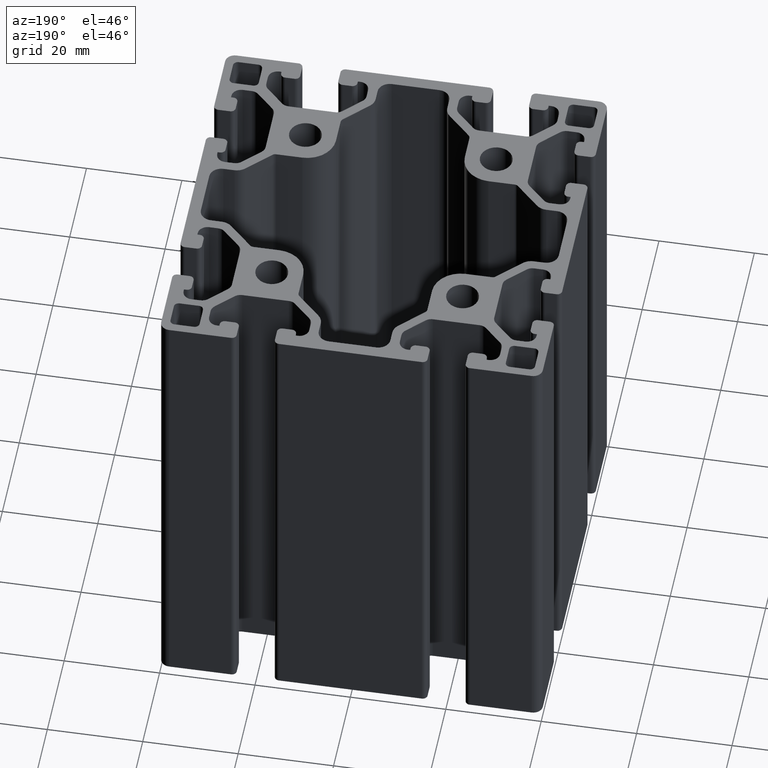
[diagram: clean part render]
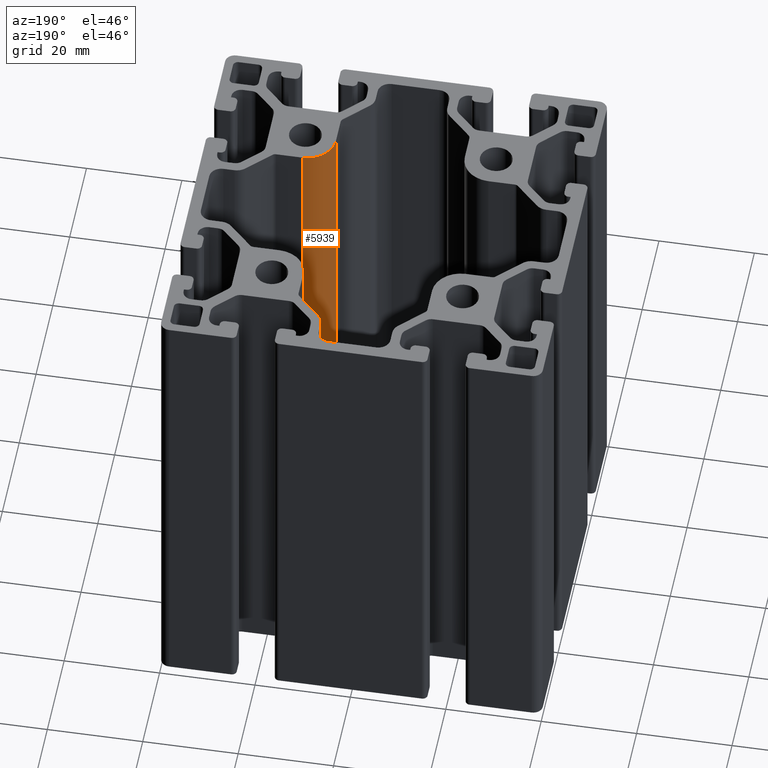
[diagram: same view with one face highlighted and labeled with its STEP entity id]
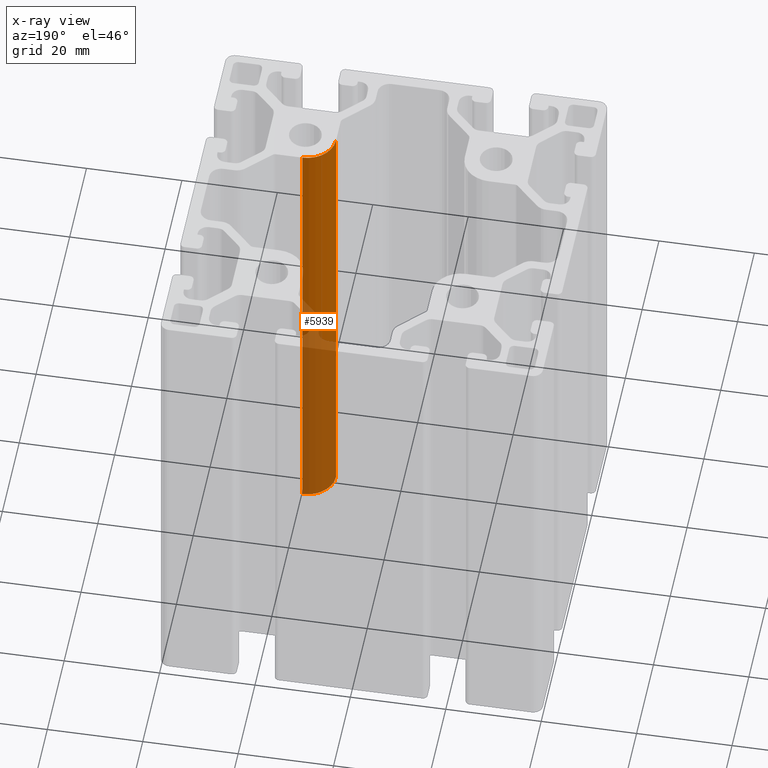
[diagram: x-ray of the same camera — body ghosted, the highlighted face saturated]
A machine part, auxiliary view. The second image highlights one B-rep face of the part: STEP entity #5939.
The next image is the same camera in x-ray: the body ghosted, the highlighted face saturated — about 50% of this face is hidden behind the body in this view.
In plain terms, the highlighted cylindrical surface (edge-blend (fillet) strip) has radius 6 mm, axis along (0, 0, 1).
Its self-contained STEP definition (entity closure, byte-faithful):
#229=FACE_OUTER_BOUND('',#539,.T.);
#539=EDGE_LOOP('',(#4041,#4042,#4043,#4044));
#901=LINE('',#8848,#1525);
#902=LINE('',#8854,#1526);
#1525=VECTOR('',#7009,100.);
#1526=VECTOR('',#7016,100.);
#2119=CIRCLE('',#6282,6.);
#2120=CIRCLE('',#6283,6.);
#2445=VERTEX_POINT('',#8844);
#2446=VERTEX_POINT('',#8846);
#2447=VERTEX_POINT('',#8850);
#2448=VERTEX_POINT('',#8852);
#3091=EDGE_CURVE('',#2446,#2445,#901,.T.);
#3092=EDGE_CURVE('',#2445,#2447,#2119,.T.);
#3093=EDGE_CURVE('',#2448,#2446,#2120,.T.);
#3094=EDGE_CURVE('',#2448,#2447,#902,.T.);
#4041=ORIENTED_EDGE('',*,*,#3092,.F.);
#4042=ORIENTED_EDGE('',*,*,#3091,.F.);
#4043=ORIENTED_EDGE('',*,*,#3093,.F.);
#4044=ORIENTED_EDGE('',*,*,#3094,.T.);
#5776=CYLINDRICAL_SURFACE('',#6281,6.);
#5939=ADVANCED_FACE('',(#229),#5776,.T.);
#6281=AXIS2_PLACEMENT_3D('',#8849,#7010,#7011);
#6282=AXIS2_PLACEMENT_3D('',#8851,#7012,#7013);
#6283=AXIS2_PLACEMENT_3D('',#8853,#7014,#7015);
#7009=DIRECTION('',(0.,0.,1.));
#7010=DIRECTION('center_axis',(0.,0.,1.));
#7011=DIRECTION('ref_axis',(7.40148683083438E-16,1.,0.));
#7012=DIRECTION('center_axis',(0.,0.,1.));
#7013=DIRECTION('ref_axis',(7.40148683083438E-16,1.,0.));
#7014=DIRECTION('center_axis',(0.,0.,-1.));
#7015=DIRECTION('ref_axis',(7.40148683083438E-16,1.,0.));
#7016=DIRECTION('',(0.,0.,1.));
#8844=CARTESIAN_POINT('',(19.5,-13.5,100.));
#8846=CARTESIAN_POINT('',(19.5,-13.5,0.));
#8848=CARTESIAN_POINT('',(19.5,-13.5,0.));
#8849=CARTESIAN_POINT('Origin',(19.5,-19.5,0.));
#8850=CARTESIAN_POINT('',(13.5,-19.5,100.));
#8851=CARTESIAN_POINT('Origin',(19.5,-19.5,100.));
#8852=CARTESIAN_POINT('',(13.5,-19.5,0.));
#8853=CARTESIAN_POINT('Origin',(19.5,-19.5,0.));
#8854=CARTESIAN_POINT('',(13.5,-19.5,0.));